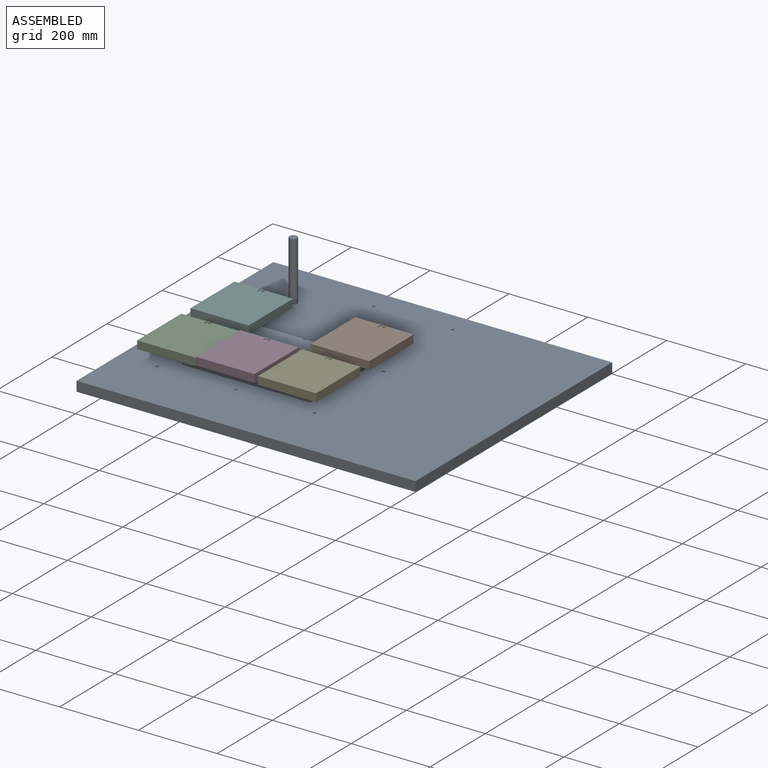
[diagram: assembled view]
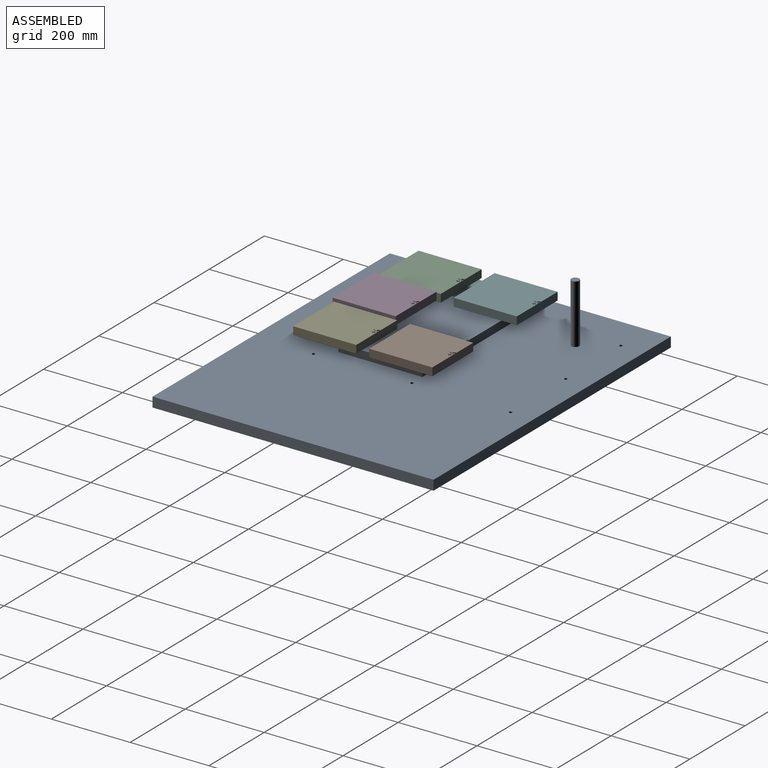
[diagram: assembled view, second angle]
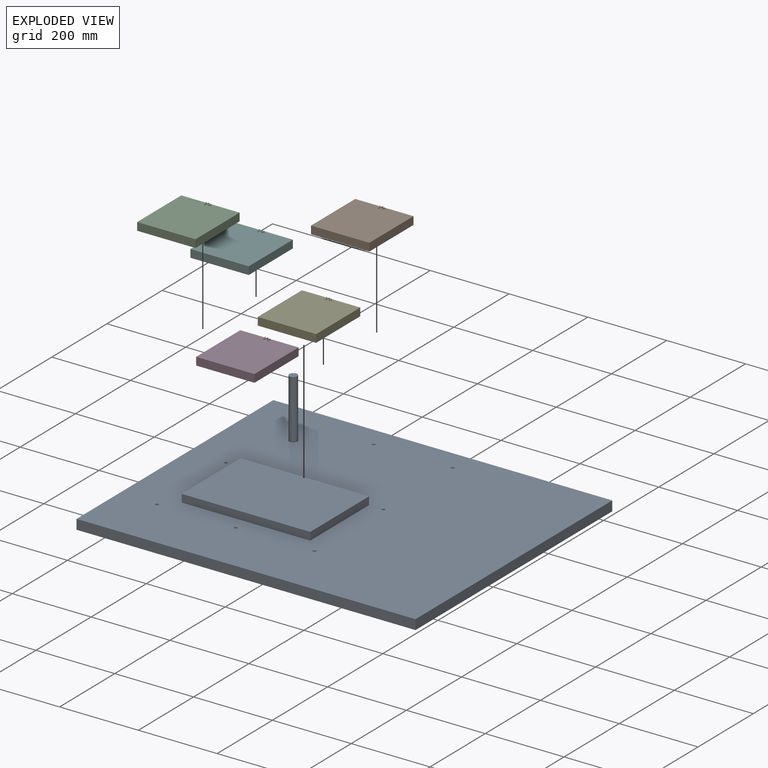
[diagram: exploded view]
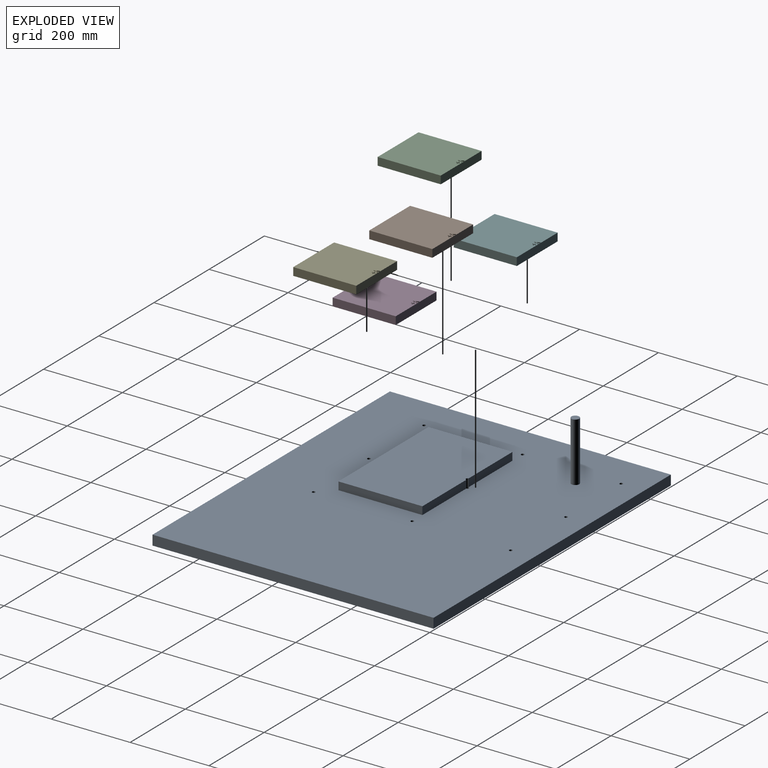
[diagram: exploded view, second angle]
ASSEMBLY  parts=6 mates=4
PART A: 32 faces, bbox 860x713x175 mm
  f0: plane 860x713mm, normal (0,0,1), area 542981.4mm2, adj f1,f2,f3,f4,f6,f8,f10,f12
  f1: plane 713x25mm, normal (-1,0,0), area 17825mm2, adj f0,f2,f4,f5
  f2: plane 860x25mm, normal (0,-1,0), area 21500mm2, adj f0,f1,f3,f5
  f3: plane 713x25mm, normal (1,0,0), area 17825mm2, adj f0,f2,f4,f5
  f4: plane 860x25mm, normal (0,1,0), area 21500mm2, adj f0,f1,f3,f5
  f5: plane 860x713mm, normal (0,0,-1), area 613180mm2, adj f1,f2,f3,f4
  f6: cylinder r=4mm len=20mm, axis (0,0,1), area 502.7mm2, adj f0,f7
  f7: plane 8x8mm, normal (0,0,1), area 50.3mm2, adj f6
  f8: cylinder r=4mm len=20mm, axis (0,0,1), area 502.7mm2, adj f0,f9
  f9: plane 8x8mm, normal (0,0,1), area 50.3mm2, adj f8
  f10: cylinder r=4mm len=20mm, axis (0,0,1), area 502.7mm2, adj f0,f11
  f11: plane 8x8mm, normal (0,0,1), area 50.3mm2, adj f10
  f12: cylinder r=4mm len=20mm, axis (0,0,1), area 502.7mm2, adj f0,f13
  f13: plane 8x8mm, normal (0,0,1), area 50.3mm2, adj f12
  f14: cylinder r=4mm len=20mm, axis (0,0,1), area 502.7mm2, adj f0,f15
  f15: plane 8x8mm, normal (0,0,1), area 50.3mm2, adj f14
  f16: cylinder r=4mm len=40mm, axis (0,0,1), area 754mm2, adj f0,f17,f24,f28,f29
  f17: plane 8x8mm, normal (0,0,1), area 50.3mm2, adj f16
  f18: cylinder r=4mm len=20mm, axis (0,0,1), area 502.7mm2, adj f0,f19
  f19: plane 8x8mm, normal (0,0,1), area 50.3mm2, adj f18
  f20: cylinder r=4mm len=20mm, axis (0,0,1), area 502.7mm2, adj f0,f21
  f21: plane 8x8mm, normal (0,0,1), area 50.3mm2, adj f20
  f22: cylinder r=4mm len=20mm, axis (0,0,1), area 502.7mm2, adj f0,f23
  f23: plane 8x8mm, normal (0,0,1), area 50.3mm2, adj f22
  f24: plane 159x20mm, normal (0,1,0), area 3180mm2, adj f0,f16,f25,f29
  f25: plane 213x20mm, normal (-1,0,0), area 4260mm2, adj f0,f24,f26,f29
  f26: plane 326.09x20mm, normal (0,-1,0), area 6521.8mm2, adj f0,f25,f27,f29
  f27: plane 213x20mm, normal (1,0,0), area 4260mm2, adj f0,f26,f28,f29
  f28: plane 159.09x20mm, normal (0,1,0), area 3181.8mm2, adj f0,f16,f27,f29
  f29: plane 326.09x213mm, normal (0,0,1), area 69432mm2, adj f16,f24,f25,f26,f27,f28
  f30: cylinder r=10mm len=150mm, axis (0,0,-1), area 9424.8mm2, adj f0,f31
  f31: plane 20x20mm, normal (0,0,1), area 314.2mm2, adj f30
PART B: 34 faces, bbox 148x160x47 mm
  f0: plane 160x148mm, normal (0,0,1), area 23636.2mm2, adj f7,f8,f9,f10,f11,f12,f13,f14
  f1: plane 25x20mm, normal (-1,0,0), area 500mm2, adj f2,f4,f5,f6
  f2: plane 25x20mm, normal (0,-1,0), area 500mm2, adj f1,f3,f5,f6
  f3: plane 25x20mm, normal (1,0,0), area 500mm2, adj f2,f4,f5,f6
  f4: plane 25x20mm, normal (0,1,0), area 500mm2, adj f1,f3,f5,f6
  f5: plane 20x20mm, normal (0,0,-1), area 400mm2, adj f1,f2,f3,f4
  f6: plane 160x148mm, normal (0,0,-1), area 23280mm2, adj f1,f2,f3,f4,f7,f8,f9,f10
  f7: plane 160x20mm, normal (-1,0,0), area 3200mm2, adj f0,f6,f8,f10
  f8: plane 148x20mm, normal (0,-1,0), area 2960mm2, adj f0,f6,f7,f9
  f9: plane 160x20mm, normal (1,0,0), area 3200mm2, adj f0,f6,f8,f10
  f10: plane 148x20mm, normal (0,1,0), area 2960mm2, adj f0,f6,f7,f9
  f11: plane 5.97x3.16mm, normal (0.88,0.47,0), area 13.5mm2, adj f0,f12,f19,f20
  f12: plane 2x1.52mm, normal (0,1,0), area 3mm2, adj f0,f11,f13,f20
  f13: plane 7.37x3.98mm, normal (-0.88,-0.47,0), area 16.8mm2, adj f0,f12,f14,f20
  f14: plane 4.57x2mm, normal (-1,0,0), area 9.1mm2, adj f0,f13,f15,f20
  f15: plane 2x1.4mm, normal (0,-1,0), area 2.8mm2, adj f0,f14,f16,f20
  f16: plane 4.63x2mm, normal (1,0,0), area 9.3mm2, adj f0,f15,f17,f20
  f17: plane 7.31x3.99mm, normal (0.88,-0.48,0), area 16.7mm2, adj f0,f16,f18,f20
  f18: plane 2x1.5mm, normal (0,1,0), area 3mm2, adj f0,f17,f19,f20
  f19: plane 5.97x3.18mm, normal (-0.88,0.47,0), area 13.5mm2, adj f0,f11,f18,f20
  f20: plane 11.94x9.37mm, normal (0,0,1), area 27mm2, adj f11,f12,f13,f14,f15,f16,f17,f18
  f21: plane 3.49x2mm, normal (1,0,0), area 7mm2, adj f0,f22,f32,f33
  f22: plane 2x1.14mm, normal (0,1,0), area 2.3mm2, adj f0,f21,f23,f33
  f23: plane 3.49x2mm, normal (-1,0,0), area 7mm2, adj f0,f22,f24,f33
  f24: plane 3.35x2mm, normal (0,1,0), area 6.7mm2, adj f0,f23,f25,f33
  f25: plane 2x1.13mm, normal (-1,0,0), area 2.3mm2, adj f0,f24,f26,f33
  f26: plane 3.35x2mm, normal (0,-1,0), area 6.7mm2, adj f0,f25,f27,f33
  f27: plane 3.48x2mm, normal (-1,0,0), area 7mm2, adj f0,f26,f28,f33
  f28: plane 2x1.14mm, normal (0,-1,0), area 2.3mm2, adj f0,f27,f29,f33
  f29: plane 3.48x2mm, normal (1,0,0), area 7mm2, adj f0,f28,f30,f33
  f30: plane 3.36x2mm, normal (0,-1,0), area 6.7mm2, adj f0,f29,f31,f33
  f31: plane 2x1.13mm, normal (1,0,0), area 2.3mm2, adj f0,f30,f32,f33
  f32: plane 3.36x2mm, normal (0,1,0), area 6.7mm2, adj f0,f21,f31,f33
  f33: plane 8.1x7.85mm, normal (0,0,1), area 16.8mm2, adj f21,f22,f23,f24,f25,f26,f27,f28
PART C: same geometry as B
PART D: same geometry as B
PART E: same geometry as B
PART F: same geometry as B
PLACE A t=(-47.35,-255.18,211.65)mm
PLACE B t=(-406.36,101.06,231.65)mm
PLACE C t=(-712.45,-91.94,231.65)mm
PLACE D t=(-558.35,-98.27,237.56)mm
PLACE E t=(-406.36,-91.94,231.65)mm
PLACE F t=(-712.45,101.06,231.65)mm
MATE planar C.f5 <-> A.f29  axis (0,0,1) through (-716.71,-105.02,231.65)mm
MATE planar F.f5 <-> A.f29  axis (0,0,1) through (-716.71,107.98,231.65)mm
MATE planar E.f5 <-> A.f29  axis (0,0,1) through (-390.62,-105.02,231.65)mm
MATE planar B.f5 <-> A.f29  axis (0,0,1) through (-390.62,107.98,231.65)mm
